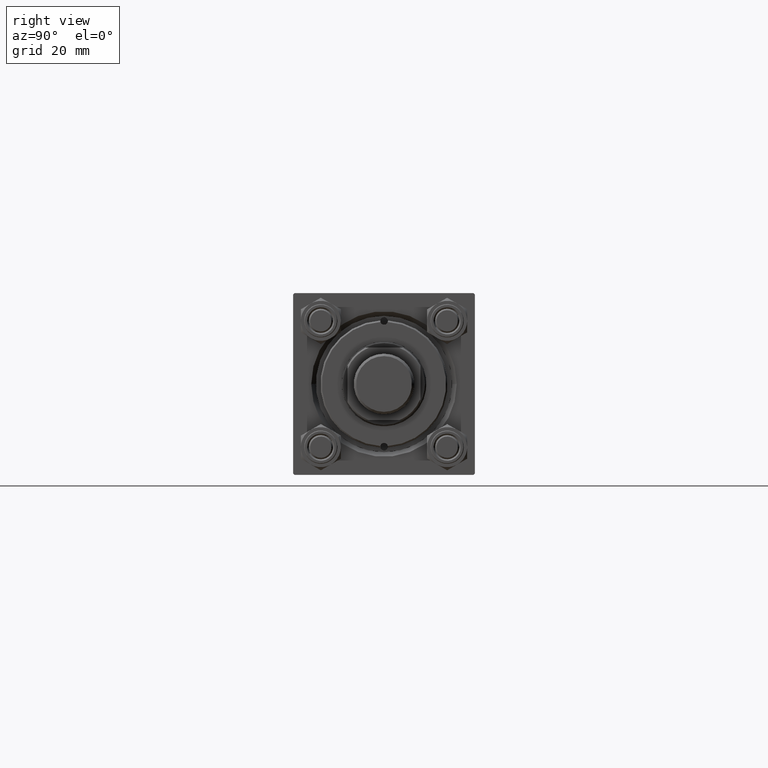
[diagram: clean part render]
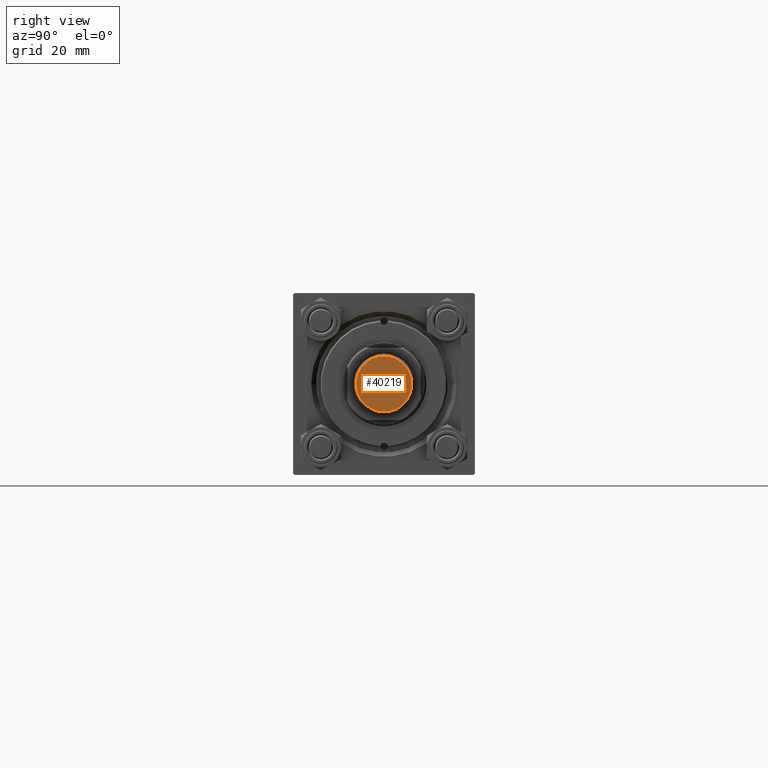
[diagram: same view with one face highlighted and labeled with its STEP entity id]
A machine part, right view. The second image highlights one B-rep face of the part: STEP entity #40219.
In plain terms, the highlighted planar face has unit normal (-1, 0, 0).
Its self-contained STEP definition (entity closure, byte-faithful):
#1269 = AXIS2_PLACEMENT_3D ( 'NONE', #17460, #33593, #9522 ) ;
#1468 = AXIS2_PLACEMENT_3D ( 'NONE', #24493, #9884, #1927 ) ;
#1926 = ORIENTED_EDGE ( 'NONE', *, *, #13931, .T. ) ;
#1927 = DIRECTION ( 'NONE',  ( 1.000000000000000000, 0.000000000000000000, -0.000000000000000000 ) ) ;
#4088 = AXIS2_PLACEMENT_3D ( 'NONE', #30803, #46494, #43142 ) ;
#5624 = CARTESIAN_POINT ( 'NONE',  ( -9.199999999999992184, 1.175660927181458645E-15, 0.000000000000000000 ) ) ;
#7218 = VERTEX_POINT ( 'NONE', #36465 ) ;
#8878 = PLANE ( 'NONE',  #1468 ) ;
#9522 = DIRECTION ( 'NONE',  ( 1.000000000000000000, 0.000000000000000000, 0.000000000000000000 ) ) ;
#9884 = DIRECTION ( 'NONE',  ( 0.000000000000000000, 0.000000000000000000, 1.000000000000000000 ) ) ;
#13890 = CIRCLE ( 'NONE', #4088, 9.199999999999992184 ) ;
#13931 = EDGE_CURVE ( 'NONE', #28706, #7218, #13890, .T. ) ;
#17460 = CARTESIAN_POINT ( 'NONE',  ( 0.000000000000000000, 0.000000000000000000, 0.000000000000000000 ) ) ;
#24493 = CARTESIAN_POINT ( 'NONE',  ( 0.000000000000000000, 0.000000000000000000, 0.000000000000000000 ) ) ;
#28706 = VERTEX_POINT ( 'NONE', #5624 ) ;
#30803 = CARTESIAN_POINT ( 'NONE',  ( 0.000000000000000000, 0.000000000000000000, 0.000000000000000000 ) ) ;
#31904 = EDGE_CURVE ( 'NONE', #7218, #28706, #45549, .T. ) ;
#32374 = ORIENTED_EDGE ( 'NONE', *, *, #31904, .T. ) ;
#33208 = FACE_OUTER_BOUND ( 'NONE', #44546, .T. ) ;
#33593 = DIRECTION ( 'NONE',  ( -0.000000000000000000, -0.000000000000000000, -1.000000000000000000 ) ) ;
#36465 = CARTESIAN_POINT ( 'NONE',  ( 9.199999999999992184, 0.000000000000000000, 0.000000000000000000 ) ) ;
#40219 = ADVANCED_FACE ( 'NONE', ( #33208 ), #8878, .F. ) ;
#43142 = DIRECTION ( 'NONE',  ( 1.000000000000000000, 0.000000000000000000, 0.000000000000000000 ) ) ;
#44546 = EDGE_LOOP ( 'NONE', ( #32374, #1926 ) ) ;
#45549 = CIRCLE ( 'NONE', #1269, 9.199999999999992184 ) ;
#46494 = DIRECTION ( 'NONE',  ( -0.000000000000000000, -0.000000000000000000, -1.000000000000000000 ) ) ;